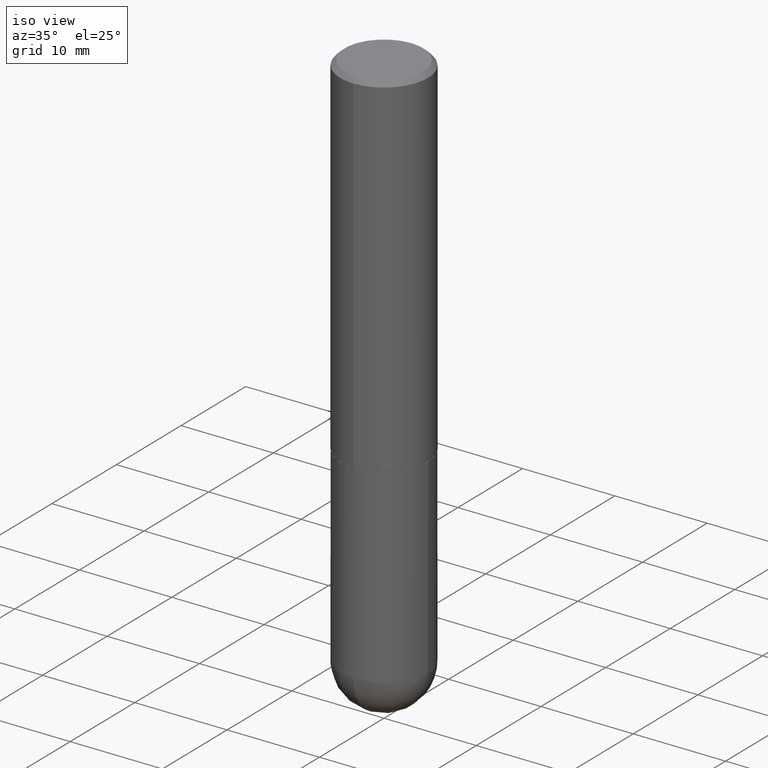
[diagram: clean part render]
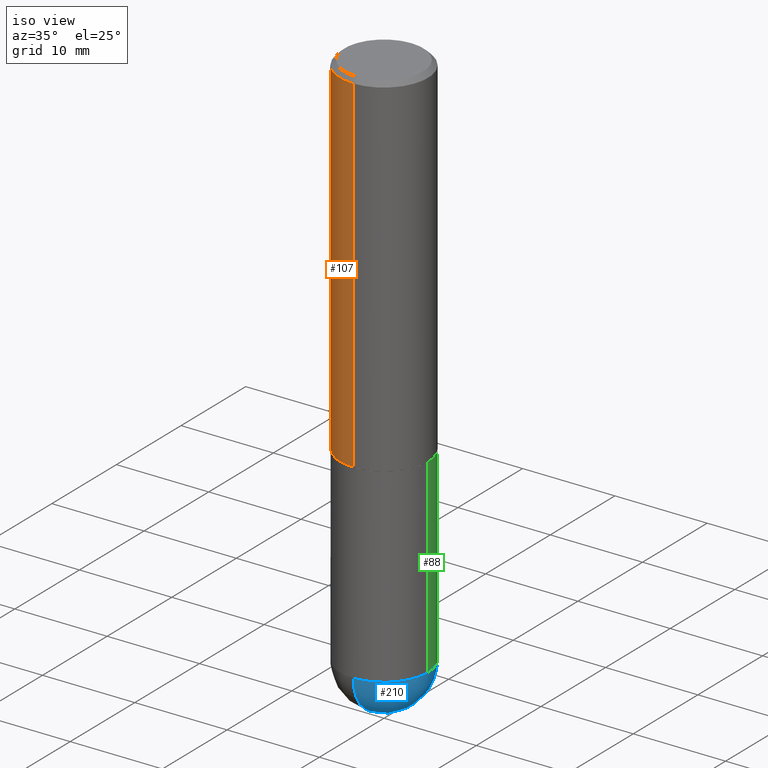
[diagram: same view with three faces highlighted in distinct colors, each labeled with its STEP entity id]
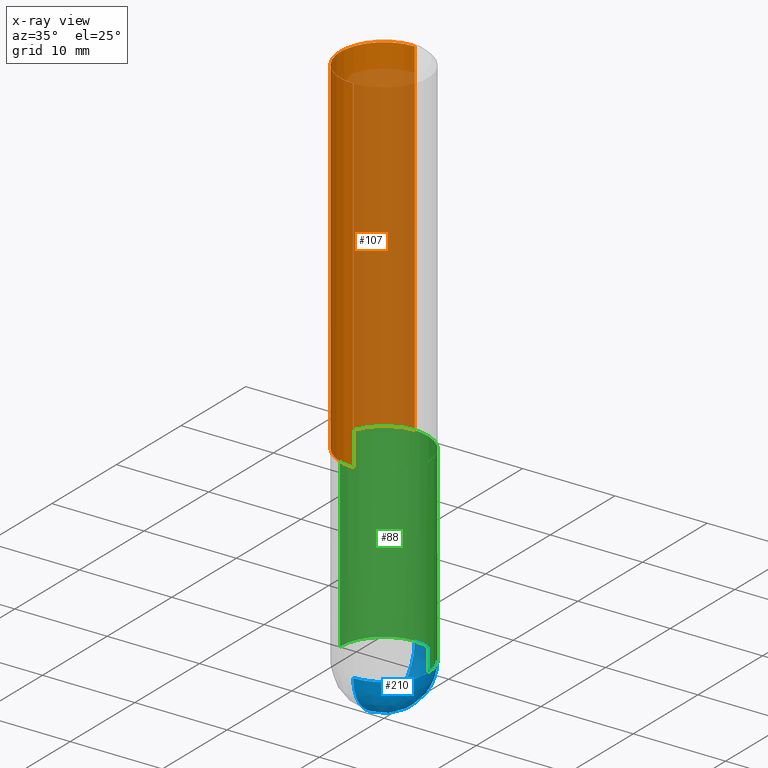
[diagram: x-ray of the same camera — body ghosted, the three highlighted faces saturated]
A machine part, iso view with three faces highlighted in distinct colors.
The next image is the same camera in x-ray (body ghosted, the three faces saturated) — at least one of them is partly hidden behind the body in this view.
Their STEP definitions:

[orange] entity #107 — the highlighted cylindrical surface (partial cylindrical patch) has radius 4.7625 mm, axis along (-0, 0, 1).
#29 = EDGE_LOOP ( 'NONE', ( #195, #412, #189, #357 ) ) ;
#34 = DIRECTION ( 'NONE',  ( -6.982962677686266711E-15, -1.000000000000000000, 3.483106191921935949E-15 ) ) ;
#40 = AXIS2_PLACEMENT_3D ( 'NONE', #292, #250, #201 ) ;
#46 = CARTESIAN_POINT ( 'NONE',  ( 1.332267629550188243E-15, 0.1875000000000000833, -6.547720512208916374E-16 ) ) ;
#65 = VERTEX_POINT ( 'NONE', #328 ) ;
#74 = VECTOR ( 'NONE', #370, 39.37007874015748143 ) ;
#75 = CARTESIAN_POINT ( 'NONE',  ( -1.309305502066139509E-15, -0.1875000000000054123, -1.498999999999999444 ) ) ;
#76 = FACE_OUTER_BOUND ( 'NONE', #29, .T. ) ;
#90 = CARTESIAN_POINT ( 'NONE',  ( -1.286343374582161379E-15, -0.1875000000000000555, -0.01999999999999938979 ) ) ;
#94 = EDGE_CURVE ( 'NONE', #65, #157, #281, .T. ) ;
#107 = ADVANCED_FACE ( 'NONE', ( #76 ), #405, .T. ) ;
#108 = CARTESIAN_POINT ( 'NONE',  ( -1.309305502066175600E-15, -0.1875000000000000833, 6.547720512208916374E-16 ) ) ;
#122 = EDGE_CURVE ( 'NONE', #364, #294, #248, .T. ) ;
#157 = VERTEX_POINT ( 'NONE', #190 ) ;
#165 = EDGE_CURVE ( 'NONE', #65, #364, #411, .T. ) ;
#178 = DIRECTION ( 'NONE',  ( -6.982962677686266711E-15, -1.000000000000000000, 3.492117606511420488E-15 ) ) ;
#182 = DIRECTION ( 'NONE',  ( -2.445024502847078622E-29, 3.492117606511420488E-15, 1.000000000000000000 ) ) ;
#189 = ORIENTED_EDGE ( 'NONE', *, *, #122, .T. ) ;
#190 = CARTESIAN_POINT ( 'NONE',  ( 1.309305502066175205E-15, 0.1874999999999999167, -0.02000000000000069431 ) ) ;
#195 = ORIENTED_EDGE ( 'NONE', *, *, #94, .F. ) ;
#201 = DIRECTION ( 'NONE',  ( -6.982962677686265922E-15, -1.000000000000000000, 2.913971193241877611E-15 ) ) ;
#206 = CIRCLE ( 'NONE', #245, 0.1874999999999999722 ) ;
#214 = DIRECTION ( 'NONE',  ( -2.445024502847078342E-29, 3.492117606511420488E-15, 1.000000000000000000 ) ) ;
#227 = EDGE_CURVE ( 'NONE', #157, #294, #206, .T. ) ;
#245 = AXIS2_PLACEMENT_3D ( 'NONE', #327, #263, #34 ) ;
#248 = LINE ( 'NONE', #108, #74 ) ;
#250 = DIRECTION ( 'NONE',  ( -2.445024502847078342E-29, 3.492117606511420488E-15, 1.000000000000000000 ) ) ;
#263 = DIRECTION ( 'NONE',  ( -2.445024502847078342E-29, 3.492117606511420488E-15, 1.000000000000000000 ) ) ;
#269 = VECTOR ( 'NONE', #182, 39.37007874015748143 ) ;
#281 = LINE ( 'NONE', #46, #269 ) ;
#292 = CARTESIAN_POINT ( 'NONE',  ( 3.665091729767770876E-29, -5.234684292160619130E-15, -1.499000000000000110 ) ) ;
#294 = VERTEX_POINT ( 'NONE', #90 ) ;
#312 = CARTESIAN_POINT ( 'NONE',  ( 0.000000000000000000, 0.000000000000000000, 0.000000000000000000 ) ) ;
#325 = AXIS2_PLACEMENT_3D ( 'NONE', #312, #214, #178 ) ;
#327 = CARTESIAN_POINT ( 'NONE',  ( 4.890049005694167439E-31, -6.984235213022855028E-17, -0.02000000000000004205 ) ) ;
#328 = CARTESIAN_POINT ( 'NONE',  ( 1.332267629550206781E-15, 0.1874999999999949485, -1.499000000000000554 ) ) ;
#357 = ORIENTED_EDGE ( 'NONE', *, *, #227, .F. ) ;
#364 = VERTEX_POINT ( 'NONE', #75 ) ;
#370 = DIRECTION ( 'NONE',  ( -2.445024502847078622E-29, 3.492117606511420488E-15, 1.000000000000000000 ) ) ;
#405 = CYLINDRICAL_SURFACE ( 'NONE', #325, 0.1875000000000000833 ) ;
#411 = CIRCLE ( 'NONE', #40, 0.1875000000000001943 ) ;
#412 = ORIENTED_EDGE ( 'NONE', *, *, #165, .T. ) ;

[blue] entity #210 — the highlighted spherical surface has radius 4.7625 mm.
#5 = DIRECTION ( 'NONE',  ( 6.982962677686266711E-15, 1.000000000000000000, -2.913971193241875639E-15 ) ) ;
#11 = ORIENTED_EDGE ( 'NONE', *, *, #249, .F. ) ;
#21 = DIRECTION ( 'NONE',  ( -2.445468806185136597E-29, 3.491481338843145583E-15, 1.000000000000000000 ) ) ;
#24 = DIRECTION ( 'NONE',  ( -7.105427357600999492E-15, -1.000000000000000000, 0.000000000000000000 ) ) ;
#41 = FACE_OUTER_BOUND ( 'NONE', #176, .T. ) ;
#47 = DIRECTION ( 'NONE',  ( 6.982962677686265922E-15, 1.000000000000000000, 0.000000000000000000 ) ) ;
#51 = DIRECTION ( 'NONE',  ( -1.000000000000000000, 7.105427357601001070E-15, -4.926315508542082329E-29 ) ) ;
#81 = ORIENTED_EDGE ( 'NONE', *, *, #355, .F. ) ;
#85 = AXIS2_PLACEMENT_3D ( 'NONE', #374, #371, #47 ) ;
#103 = AXIS2_PLACEMENT_3D ( 'NONE', #112, #21, #186 ) ;
#112 = CARTESIAN_POINT ( 'NONE',  ( 5.655146614303128380E-29, -8.074050596074775072E-15, -2.312500000000000000 ) ) ;
#118 = AXIS2_PLACEMENT_3D ( 'NONE', #197, #311, #128 ) ;
#128 = DIRECTION ( 'NONE',  ( 1.000000000000000000, -6.982962677686270655E-15, 0.000000000000000000 ) ) ;
#129 = VERTEX_POINT ( 'NONE', #373 ) ;
#134 = SPHERICAL_SURFACE ( 'NONE', #223, 0.1875000000000003331 ) ;
#139 = CARTESIAN_POINT ( 'NONE',  ( 5.790569421510013204E-29, -9.191404651505909607E-15, -2.500000000000000000 ) ) ;
#167 = CARTESIAN_POINT ( 'NONE',  ( 5.324026836389243254E-29, -8.548232964214825368E-15, -2.312500000000000000 ) ) ;
#176 = EDGE_LOOP ( 'NONE', ( #81, #321, #11, #291 ) ) ;
#186 = DIRECTION ( 'NONE',  ( 1.000000000000000000, -6.982962677686270655E-15, 0.000000000000000000 ) ) ;
#191 = VERTEX_POINT ( 'NONE', #322 ) ;
#197 = CARTESIAN_POINT ( 'NONE',  ( 5.655146614303128380E-29, -8.074050596074775072E-15, -2.312500000000000000 ) ) ;
#202 = VERTEX_POINT ( 'NONE', #334 ) ;
#210 = ADVANCED_FACE ( 'NONE', ( #41 ), #134, .T. ) ;
#216 = CARTESIAN_POINT ( 'NONE',  ( 5.324026836389243254E-29, -8.548232964214825368E-15, -2.312500000000000000 ) ) ;
#223 = AXIS2_PLACEMENT_3D ( 'NONE', #167, #388, #5 ) ;
#238 = CIRCLE ( 'NONE', #85, 0.1875000000000003331 ) ;
#249 = EDGE_CURVE ( 'NONE', #191, #129, #333, .T. ) ;
#261 = CIRCLE ( 'NONE', #316, 0.1875000000000003331 ) ;
#271 = VERTEX_POINT ( 'NONE', #139 ) ;
#291 = ORIENTED_EDGE ( 'NONE', *, *, #365, .F. ) ;
#295 = CIRCLE ( 'NONE', #103, 0.1875000000000000555 ) ;
#311 = DIRECTION ( 'NONE',  ( -2.445468806185136597E-29, 3.491481338843145583E-15, 1.000000000000000000 ) ) ;
#316 = AXIS2_PLACEMENT_3D ( 'NONE', #216, #51, #24 ) ;
#321 = ORIENTED_EDGE ( 'NONE', *, *, #344, .T. ) ;
#322 = CARTESIAN_POINT ( 'NONE',  ( 0.1875000000000000555, -7.964941804235924394E-15, -2.312500000000000000 ) ) ;
#333 = CIRCLE ( 'NONE', #118, 0.1875000000000000555 ) ;
#334 = CARTESIAN_POINT ( 'NONE',  ( -1.332267629550134009E-15, -0.1875000000000084932, -2.312499999999999556 ) ) ;
#344 = EDGE_CURVE ( 'NONE', #271, #129, #238, .T. ) ;
#355 = EDGE_CURVE ( 'NONE', #271, #202, #261, .T. ) ;
#365 = EDGE_CURVE ( 'NONE', #202, #191, #295, .T. ) ;
#371 = DIRECTION ( 'NONE',  ( 1.000000000000000000, -6.982962677686265922E-15, 4.883557194083112340E-29 ) ) ;
#373 = CARTESIAN_POINT ( 'NONE',  ( 1.309305502066231017E-15, 0.1874999999999918954, -2.312500000000000444 ) ) ;
#374 = CARTESIAN_POINT ( 'NONE',  ( 5.324026836389243254E-29, -8.548232964214825368E-15, -2.312500000000000000 ) ) ;
#388 = DIRECTION ( 'NONE',  ( -1.000000000000000000, 6.982962677686266711E-15, -4.883557194083113462E-29 ) ) ;

[green] entity #88 — the highlighted cylindrical surface (partial cylindrical patch) has radius 4.7625 mm, axis along (-0, 0, 1).
#2 = ORIENTED_EDGE ( 'NONE', *, *, #249, .T. ) ;
#7 = EDGE_CURVE ( 'NONE', #330, #138, #229, .T. ) ;
#13 = DIRECTION ( 'NONE',  ( 1.000000000000000000, -6.982962677686270655E-15, 0.000000000000000000 ) ) ;
#18 = CIRCLE ( 'NONE', #142, 0.1875000000000000555 ) ;
#22 = CARTESIAN_POINT ( 'NONE',  ( 0.1875000000000000278, -6.546527510330893974E-15, -1.500000000000000222 ) ) ;
#33 = LINE ( 'NONE', #239, #259 ) ;
#37 = CARTESIAN_POINT ( 'NONE',  ( 5.655146614303128380E-29, -8.074050596074775072E-15, -2.312500000000000000 ) ) ;
#42 = DIRECTION ( 'NONE',  ( -2.445468806185136877E-29, 3.491481338843145188E-15, 1.000000000000000000 ) ) ;
#43 = EDGE_CURVE ( 'NONE', #191, #116, #33, .T. ) ;
#72 = DIRECTION ( 'NONE',  ( -2.445468806185136597E-29, 3.491481338843145583E-15, 1.000000000000000000 ) ) ;
#88 = ADVANCED_FACE ( 'NONE', ( #183 ), #148, .T. ) ;
#95 = AXIS2_PLACEMENT_3D ( 'NONE', #279, #72, #144 ) ;
#100 = DIRECTION ( 'NONE',  ( -2.445468806185136597E-29, 3.491481338843145583E-15, 1.000000000000000000 ) ) ;
#116 = VERTEX_POINT ( 'NONE', #22 ) ;
#118 = AXIS2_PLACEMENT_3D ( 'NONE', #197, #311, #128 ) ;
#128 = DIRECTION ( 'NONE',  ( 1.000000000000000000, -6.982962677686270655E-15, 0.000000000000000000 ) ) ;
#129 = VERTEX_POINT ( 'NONE', #373 ) ;
#138 = VERTEX_POINT ( 'NONE', #252 ) ;
#140 = ORIENTED_EDGE ( 'NONE', *, *, #308, .T. ) ;
#142 = AXIS2_PLACEMENT_3D ( 'NONE', #37, #100, #13 ) ;
#144 = DIRECTION ( 'NONE',  ( 1.000000000000000000, -6.982962677686265922E-15, 4.876176775795935793E-29 ) ) ;
#148 = CYLINDRICAL_SURFACE ( 'NONE', #95, 0.1875000000000000555 ) ;
#149 = CIRCLE ( 'NONE', #383, 0.1875000000000000278 ) ;
#183 = FACE_OUTER_BOUND ( 'NONE', #199, .T. ) ;
#191 = VERTEX_POINT ( 'NONE', #322 ) ;
#197 = CARTESIAN_POINT ( 'NONE',  ( 5.655146614303128380E-29, -8.074050596074775072E-15, -2.312500000000000000 ) ) ;
#199 = EDGE_LOOP ( 'NONE', ( #140, #396, #332, #260, #2 ) ) ;
#213 = DIRECTION ( 'NONE',  ( -2.445468806185136597E-29, 3.491481338843145583E-15, 1.000000000000000000 ) ) ;
#229 = LINE ( 'NONE', #298, #301 ) ;
#239 = CARTESIAN_POINT ( 'NONE',  ( 0.1875000000000000555, -1.309305502066175205E-15, 9.142831454617382414E-30 ) ) ;
#249 = EDGE_CURVE ( 'NONE', #191, #129, #333, .T. ) ;
#252 = CARTESIAN_POINT ( 'NONE',  ( -0.1875000000000000278, -5.323368672619557593E-15, -1.500000000000000222 ) ) ;
#259 = VECTOR ( 'NONE', #296, 39.37007874015748143 ) ;
#260 = ORIENTED_EDGE ( 'NONE', *, *, #43, .F. ) ;
#279 = CARTESIAN_POINT ( 'NONE',  ( 0.000000000000000000, 0.000000000000000000, 0.000000000000000000 ) ) ;
#296 = DIRECTION ( 'NONE',  ( -2.445468806185136877E-29, 3.491481338843145188E-15, 1.000000000000000000 ) ) ;
#298 = CARTESIAN_POINT ( 'NONE',  ( -0.1875000000000000555, 1.332267629550188243E-15, -9.223003294227950793E-30 ) ) ;
#301 = VECTOR ( 'NONE', #42, 39.37007874015748143 ) ;
#308 = EDGE_CURVE ( 'NONE', #129, #330, #18, .T. ) ;
#311 = DIRECTION ( 'NONE',  ( -2.445468806185136597E-29, 3.491481338843145583E-15, 1.000000000000000000 ) ) ;
#322 = CARTESIAN_POINT ( 'NONE',  ( 0.1875000000000000555, -7.964941804235924394E-15, -2.312500000000000000 ) ) ;
#330 = VERTEX_POINT ( 'NONE', #343 ) ;
#332 = ORIENTED_EDGE ( 'NONE', *, *, #349, .F. ) ;
#333 = CIRCLE ( 'NONE', #118, 0.1875000000000000555 ) ;
#343 = CARTESIAN_POINT ( 'NONE',  ( -0.1875000000000000555, -5.323368672619559170E-15, -2.312500000000000000 ) ) ;
#349 = EDGE_CURVE ( 'NONE', #116, #138, #149, .T. ) ;
#373 = CARTESIAN_POINT ( 'NONE',  ( 1.309305502066231017E-15, 0.1874999999999918954, -2.312500000000000444 ) ) ;
#376 = DIRECTION ( 'NONE',  ( 1.000000000000000000, -6.982962677686266711E-15, 0.000000000000000000 ) ) ;
#383 = AXIS2_PLACEMENT_3D ( 'NONE', #406, #213, #376 ) ;
#396 = ORIENTED_EDGE ( 'NONE', *, *, #7, .T. ) ;
#406 = CARTESIAN_POINT ( 'NONE',  ( 3.668203209277704895E-29, -5.237222008264718177E-15, -1.500000000000000222 ) ) ;